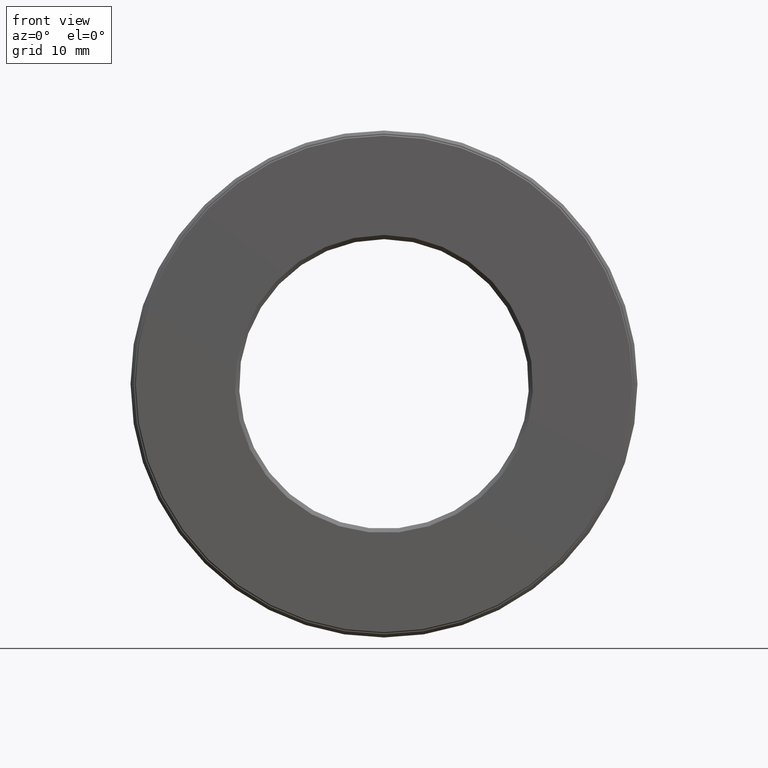
[diagram: clean part render]
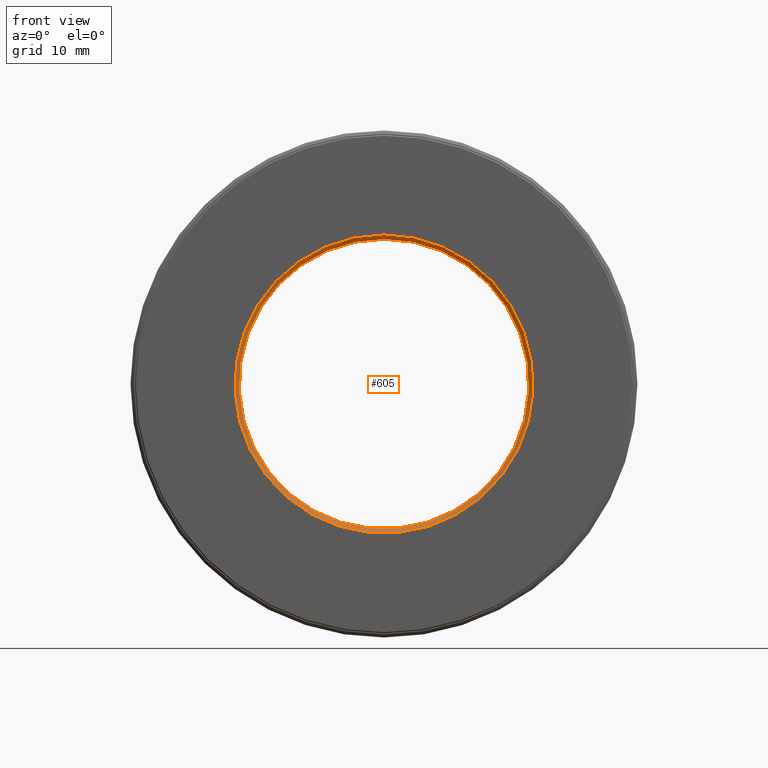
[diagram: same view with one face highlighted and labeled with its STEP entity id]
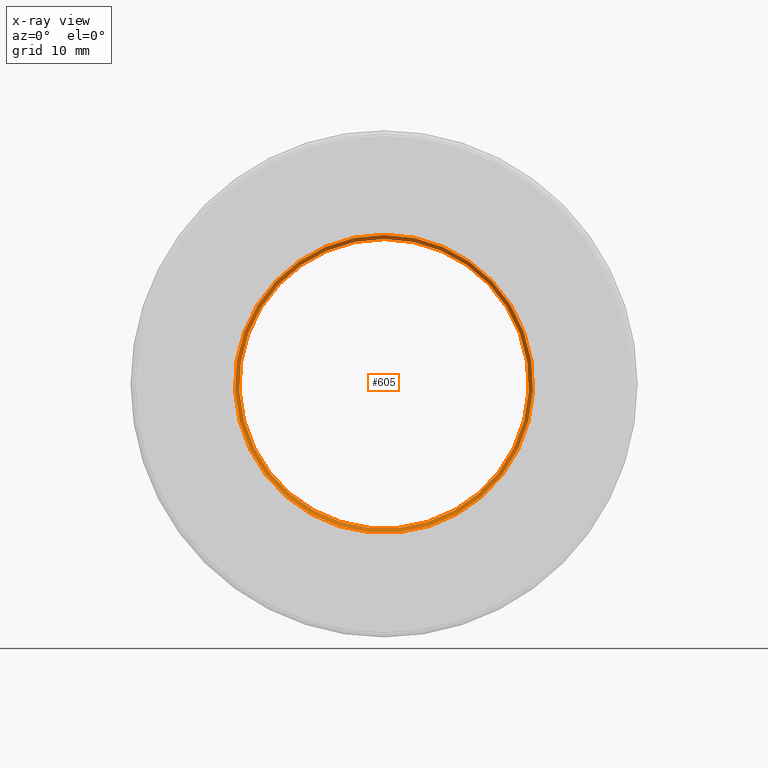
[diagram: x-ray of the same camera — body ghosted, the highlighted face saturated]
A machine part, front view. The second image highlights one B-rep face of the part: STEP entity #605.
The next image is the same camera in x-ray: the body ghosted, the highlighted face saturated — about 0% of this face is hidden behind the body in this view.
In plain terms, the highlighted conical surface has half-angle 45 deg.
Its self-contained STEP definition (entity closure, byte-faithful):
#13 = VERTEX_POINT ( 'NONE', #268 ) ;
#17 = DIRECTION ( 'NONE',  ( -0.0000000000000000000, 1.000000000000000000, -0.0000000000000000000 ) ) ;
#26 = DIRECTION ( 'NONE',  ( 0.0000000000000000000, 0.0000000000000000000, 1.000000000000000000 ) ) ;
#42 = CONICAL_SURFACE ( 'NONE', #389, 0.6874999999999998900, 0.7853981633974415100 ) ;
#112 = FACE_BOUND ( 'NONE', #376, .T. ) ;
#116 = CARTESIAN_POINT ( 'NONE',  ( 0.0000000000000000000, 0.02000000000000046900, 0.0000000000000000000 ) ) ;
#129 = AXIS2_PLACEMENT_3D ( 'NONE', #116, #495, #373 ) ;
#163 = VERTEX_POINT ( 'NONE', #220 ) ;
#174 = CARTESIAN_POINT ( 'NONE',  ( 0.0000000000000000000, 0.02000000000000046900, 0.0000000000000000000 ) ) ;
#212 = AXIS2_PLACEMENT_3D ( 'NONE', #583, #17, #26 ) ;
#217 = FACE_OUTER_BOUND ( 'NONE', #381, .T. ) ;
#220 = CARTESIAN_POINT ( 'NONE',  ( 0.0000000000000000000, 0.02000000000000046900, 0.6874999999999998900 ) ) ;
#268 = CARTESIAN_POINT ( 'NONE',  ( 0.0000000000000000000, 0.0000000000000000000, 0.7075000000000000200 ) ) ;
#301 = ORIENTED_EDGE ( 'NONE', *, *, #459, .T. ) ;
#337 = ORIENTED_EDGE ( 'NONE', *, *, #425, .F. ) ;
#368 = DIRECTION ( 'NONE',  ( 0.0000000000000000000, -1.000000000000000000, 0.0000000000000000000 ) ) ;
#373 = DIRECTION ( 'NONE',  ( 0.0000000000000000000, 0.0000000000000000000, 1.000000000000000000 ) ) ;
#376 = EDGE_LOOP ( 'NONE', ( #301 ) ) ;
#381 = EDGE_LOOP ( 'NONE', ( #337 ) ) ;
#389 = AXIS2_PLACEMENT_3D ( 'NONE', #174, #368, #499 ) ;
#425 = EDGE_CURVE ( 'NONE', #13, #13, #551, .T. ) ;
#459 = EDGE_CURVE ( 'NONE', #163, #163, #567, .T. ) ;
#495 = DIRECTION ( 'NONE',  ( -0.0000000000000000000, 1.000000000000000000, -0.0000000000000000000 ) ) ;
#499 = DIRECTION ( 'NONE',  ( 0.0000000000000000000, 0.0000000000000000000, -1.000000000000000000 ) ) ;
#551 = CIRCLE ( 'NONE', #212, 0.7075000000000000200 ) ;
#567 = CIRCLE ( 'NONE', #129, 0.6874999999999998900 ) ;
#583 = CARTESIAN_POINT ( 'NONE',  ( 0.0000000000000000000, 0.0000000000000000000, 0.0000000000000000000 ) ) ;
#605 = ADVANCED_FACE ( 'NONE', ( #217, #112 ), #42, .F. ) ;